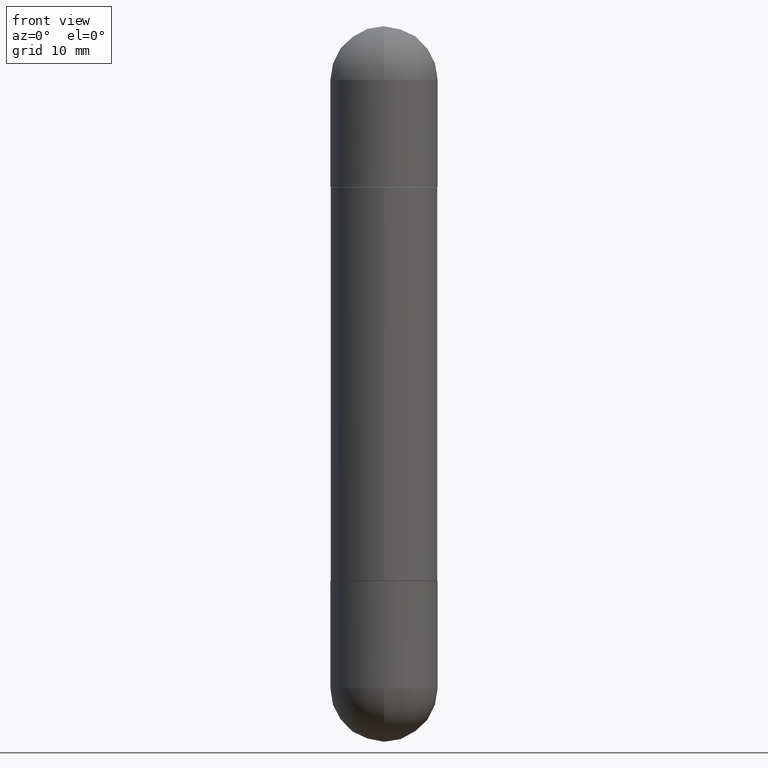
[diagram: clean part render]
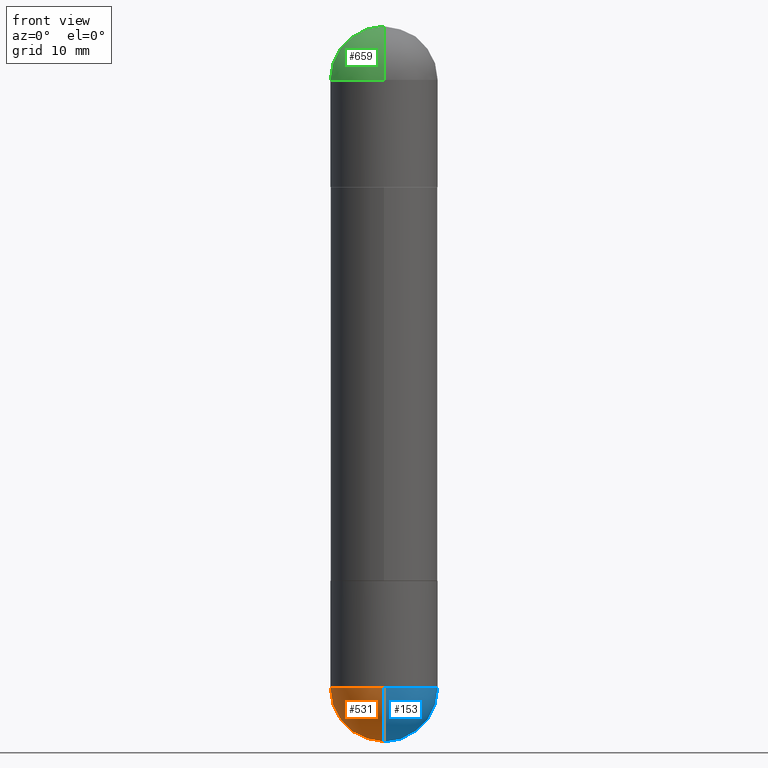
[diagram: same view with three faces highlighted in distinct colors, each labeled with its STEP entity id]
A machine part, front view with three faces highlighted in distinct colors.
Their STEP definitions:

[orange] entity #531 — the highlighted spherical surface has radius 4.7625 mm.
#18 = VERTEX_POINT ( 'NONE', #730 ) ;
#41 = CARTESIAN_POINT ( 'NONE',  ( 5.324026836389243254E-29, -8.548232964214825368E-15, -2.312500000000000000 ) ) ;
#45 = CIRCLE ( 'NONE', #618, 0.1875000000000000555 ) ;
#47 = DIRECTION ( 'NONE',  ( 6.982962677686265922E-15, 1.000000000000000000, 0.000000000000000000 ) ) ;
#68 = EDGE_LOOP ( 'NONE', ( #200, #360, #77, #252 ) ) ;
#77 = ORIENTED_EDGE ( 'NONE', *, *, #305, .F. ) ;
#85 = AXIS2_PLACEMENT_3D ( 'NONE', #41, #231, #112 ) ;
#88 = EDGE_CURVE ( 'NONE', #18, #381, #339, .T. ) ;
#112 = DIRECTION ( 'NONE',  ( -7.105427357600999492E-15, -1.000000000000000000, 0.000000000000000000 ) ) ;
#118 = CARTESIAN_POINT ( 'NONE',  ( 5.655146614303128380E-29, -8.074050596074775072E-15, -2.312500000000000000 ) ) ;
#169 = DIRECTION ( 'NONE',  ( 6.982962677686266711E-15, 1.000000000000000000, -2.913971193241875639E-15 ) ) ;
#184 = CIRCLE ( 'NONE', #652, 0.1875000000000003331 ) ;
#200 = ORIENTED_EDGE ( 'NONE', *, *, #787, .F. ) ;
#231 = DIRECTION ( 'NONE',  ( -1.000000000000000000, 7.105427357601001070E-15, -4.926315508542082329E-29 ) ) ;
#238 = CARTESIAN_POINT ( 'NONE',  ( 5.324026836389243254E-29, -8.548232964214825368E-15, -2.312500000000000000 ) ) ;
#241 = CIRCLE ( 'NONE', #272, 0.1875000000000000555 ) ;
#251 = DIRECTION ( 'NONE',  ( -2.445468806185136597E-29, 3.491481338843145583E-15, 1.000000000000000000 ) ) ;
#252 = ORIENTED_EDGE ( 'NONE', *, *, #358, .F. ) ;
#272 = AXIS2_PLACEMENT_3D ( 'NONE', #118, #450, #771 ) ;
#294 = VERTEX_POINT ( 'NONE', #576 ) ;
#305 = EDGE_CURVE ( 'NONE', #705, #381, #241, .T. ) ;
#339 = CIRCLE ( 'NONE', #85, 0.1875000000000003331 ) ;
#353 = CARTESIAN_POINT ( 'NONE',  ( 5.324026836389243254E-29, -8.548232964214825368E-15, -2.312500000000000000 ) ) ;
#358 = EDGE_CURVE ( 'NONE', #294, #705, #45, .T. ) ;
#360 = ORIENTED_EDGE ( 'NONE', *, *, #88, .T. ) ;
#377 = AXIS2_PLACEMENT_3D ( 'NONE', #353, #797, #169 ) ;
#381 = VERTEX_POINT ( 'NONE', #706 ) ;
#450 = DIRECTION ( 'NONE',  ( -2.445468806185136597E-29, 3.491481338843145583E-15, 1.000000000000000000 ) ) ;
#470 = SPHERICAL_SURFACE ( 'NONE', #377, 0.1875000000000003331 ) ;
#508 = DIRECTION ( 'NONE',  ( 1.000000000000000000, -6.982962677686270655E-15, 0.000000000000000000 ) ) ;
#531 = ADVANCED_FACE ( 'NONE', ( #784 ), #470, .T. ) ;
#568 = CARTESIAN_POINT ( 'NONE',  ( -0.1875000000000000555, -6.088003085826207710E-15, -2.312500000000000000 ) ) ;
#576 = CARTESIAN_POINT ( 'NONE',  ( 1.309305502066231017E-15, 0.1874999999999918954, -2.312500000000000444 ) ) ;
#618 = AXIS2_PLACEMENT_3D ( 'NONE', #640, #251, #508 ) ;
#620 = DIRECTION ( 'NONE',  ( 1.000000000000000000, -6.982962677686265922E-15, 4.883557194083112340E-29 ) ) ;
#640 = CARTESIAN_POINT ( 'NONE',  ( 5.655146614303128380E-29, -8.074050596074775072E-15, -2.312500000000000000 ) ) ;
#652 = AXIS2_PLACEMENT_3D ( 'NONE', #238, #620, #47 ) ;
#705 = VERTEX_POINT ( 'NONE', #568 ) ;
#706 = CARTESIAN_POINT ( 'NONE',  ( -1.332267629550134009E-15, -0.1875000000000084932, -2.312499999999999556 ) ) ;
#730 = CARTESIAN_POINT ( 'NONE',  ( 5.790569421510013204E-29, -9.191404651505909607E-15, -2.500000000000000000 ) ) ;
#771 = DIRECTION ( 'NONE',  ( 1.000000000000000000, -6.982962677686270655E-15, 0.000000000000000000 ) ) ;
#784 = FACE_OUTER_BOUND ( 'NONE', #68, .T. ) ;
#787 = EDGE_CURVE ( 'NONE', #18, #294, #184, .T. ) ;
#797 = DIRECTION ( 'NONE',  ( -1.000000000000000000, 6.982962677686266711E-15, -4.883557194083113462E-29 ) ) ;

[blue] entity #153 — the highlighted spherical surface has radius 4.7625 mm.
#18 = VERTEX_POINT ( 'NONE', #730 ) ;
#35 = DIRECTION ( 'NONE',  ( -1.000000000000000000, 6.982962677686266711E-15, -4.883557194083113462E-29 ) ) ;
#41 = CARTESIAN_POINT ( 'NONE',  ( 5.324026836389243254E-29, -8.548232964214825368E-15, -2.312500000000000000 ) ) ;
#47 = DIRECTION ( 'NONE',  ( 6.982962677686265922E-15, 1.000000000000000000, 0.000000000000000000 ) ) ;
#82 = CARTESIAN_POINT ( 'NONE',  ( 5.655146614303128380E-29, -8.074050596074775072E-15, -2.312500000000000000 ) ) ;
#85 = AXIS2_PLACEMENT_3D ( 'NONE', #41, #231, #112 ) ;
#88 = EDGE_CURVE ( 'NONE', #18, #381, #339, .T. ) ;
#112 = DIRECTION ( 'NONE',  ( -7.105427357600999492E-15, -1.000000000000000000, 0.000000000000000000 ) ) ;
#137 = ORIENTED_EDGE ( 'NONE', *, *, #88, .F. ) ;
#152 = AXIS2_PLACEMENT_3D ( 'NONE', #170, #35, #686 ) ;
#153 = ADVANCED_FACE ( 'NONE', ( #420 ), #223, .T. ) ;
#157 = CARTESIAN_POINT ( 'NONE',  ( 0.1875000000000000555, -8.729576217442571356E-15, -2.312500000000000000 ) ) ;
#170 = CARTESIAN_POINT ( 'NONE',  ( 5.324026836389243254E-29, -8.548232964214825368E-15, -2.312500000000000000 ) ) ;
#184 = CIRCLE ( 'NONE', #652, 0.1875000000000003331 ) ;
#197 = CIRCLE ( 'NONE', #728, 0.1875000000000000555 ) ;
#223 = SPHERICAL_SURFACE ( 'NONE', #152, 0.1875000000000003331 ) ;
#231 = DIRECTION ( 'NONE',  ( -1.000000000000000000, 7.105427357601001070E-15, -4.926315508542082329E-29 ) ) ;
#236 = VERTEX_POINT ( 'NONE', #157 ) ;
#238 = CARTESIAN_POINT ( 'NONE',  ( 5.324026836389243254E-29, -8.548232964214825368E-15, -2.312500000000000000 ) ) ;
#262 = EDGE_LOOP ( 'NONE', ( #137, #575, #328, #265 ) ) ;
#265 = ORIENTED_EDGE ( 'NONE', *, *, #491, .F. ) ;
#294 = VERTEX_POINT ( 'NONE', #576 ) ;
#328 = ORIENTED_EDGE ( 'NONE', *, *, #475, .F. ) ;
#339 = CIRCLE ( 'NONE', #85, 0.1875000000000003331 ) ;
#364 = AXIS2_PLACEMENT_3D ( 'NONE', #82, #668, #776 ) ;
#381 = VERTEX_POINT ( 'NONE', #706 ) ;
#420 = FACE_OUTER_BOUND ( 'NONE', #262, .T. ) ;
#468 = CIRCLE ( 'NONE', #364, 0.1875000000000000555 ) ;
#475 = EDGE_CURVE ( 'NONE', #236, #294, #197, .T. ) ;
#491 = EDGE_CURVE ( 'NONE', #381, #236, #468, .T. ) ;
#575 = ORIENTED_EDGE ( 'NONE', *, *, #787, .T. ) ;
#576 = CARTESIAN_POINT ( 'NONE',  ( 1.309305502066231017E-15, 0.1874999999999918954, -2.312500000000000444 ) ) ;
#587 = CARTESIAN_POINT ( 'NONE',  ( 5.655146614303128380E-29, -8.074050596074775072E-15, -2.312500000000000000 ) ) ;
#620 = DIRECTION ( 'NONE',  ( 1.000000000000000000, -6.982962677686265922E-15, 4.883557194083112340E-29 ) ) ;
#652 = AXIS2_PLACEMENT_3D ( 'NONE', #238, #620, #47 ) ;
#668 = DIRECTION ( 'NONE',  ( -2.445468806185136597E-29, 3.491481338843145583E-15, 1.000000000000000000 ) ) ;
#686 = DIRECTION ( 'NONE',  ( 6.982962677686266711E-15, 1.000000000000000000, -2.913971193241875639E-15 ) ) ;
#706 = CARTESIAN_POINT ( 'NONE',  ( -1.332267629550134009E-15, -0.1875000000000084932, -2.312499999999999556 ) ) ;
#722 = DIRECTION ( 'NONE',  ( -2.445468806185136597E-29, 3.491481338843145583E-15, 1.000000000000000000 ) ) ;
#727 = DIRECTION ( 'NONE',  ( 1.000000000000000000, -6.982962677686270655E-15, 0.000000000000000000 ) ) ;
#728 = AXIS2_PLACEMENT_3D ( 'NONE', #587, #722, #727 ) ;
#730 = CARTESIAN_POINT ( 'NONE',  ( 5.790569421510013204E-29, -9.191404651505909607E-15, -2.500000000000000000 ) ) ;
#776 = DIRECTION ( 'NONE',  ( 1.000000000000000000, -6.982962677686270655E-15, 0.000000000000000000 ) ) ;
#787 = EDGE_CURVE ( 'NONE', #18, #294, #184, .T. ) ;

[green] entity #659 — the highlighted spherical surface has radius 4.7625 mm.
#4 = VERTEX_POINT ( 'NONE', #723 ) ;
#33 = ORIENTED_EDGE ( 'NONE', *, *, #395, .T. ) ;
#42 = CARTESIAN_POINT ( 'NONE',  ( -1.286343374582108525E-15, -0.1875000000000084932, -0.1875000000000013045 ) ) ;
#72 = CIRCLE ( 'NONE', #374, 0.1875000000000000555 ) ;
#73 = AXIS2_PLACEMENT_3D ( 'NONE', #204, #81, #268 ) ;
#81 = DIRECTION ( 'NONE',  ( -1.000000000000000000, 6.982962677686265922E-15, 4.883557194083112340E-29 ) ) ;
#106 = DIRECTION ( 'NONE',  ( 1.000000000000000000, -6.982962677686270655E-15, 0.000000000000000000 ) ) ;
#154 = AXIS2_PLACEMENT_3D ( 'NONE', #806, #193, #391 ) ;
#162 = CARTESIAN_POINT ( 'NONE',  ( 5.655146614303128380E-29, -8.074050596074775072E-15, -0.1875000000000006661 ) ) ;
#189 = DIRECTION ( 'NONE',  ( 6.982962677686266711E-15, 1.000000000000000000, 3.460340791974727494E-15 ) ) ;
#193 = DIRECTION ( 'NONE',  ( 1.000000000000000000, -6.860497997771530774E-15, -4.840798879624142912E-29 ) ) ;
#196 = ORIENTED_EDGE ( 'NONE', *, *, #774, .F. ) ;
#202 = EDGE_CURVE ( 'NONE', #345, #4, #72, .T. ) ;
#204 = CARTESIAN_POINT ( 'NONE',  ( 5.324026836389243254E-29, -8.548232964214825368E-15, -0.1875000000000006661 ) ) ;
#209 = EDGE_CURVE ( 'NONE', #4, #645, #741, .T. ) ;
#268 = DIRECTION ( 'NONE',  ( -6.982962677686265922E-15, -1.000000000000000000, 0.000000000000000000 ) ) ;
#292 = FACE_OUTER_BOUND ( 'NONE', #303, .T. ) ;
#303 = EDGE_LOOP ( 'NONE', ( #196, #33, #697, #503 ) ) ;
#307 = CIRCLE ( 'NONE', #73, 0.1875000000000003331 ) ;
#345 = VERTEX_POINT ( 'NONE', #751 ) ;
#352 = AXIS2_PLACEMENT_3D ( 'NONE', #627, #432, #189 ) ;
#363 = AXIS2_PLACEMENT_3D ( 'NONE', #162, #793, #106 ) ;
#365 = DIRECTION ( 'NONE',  ( 1.000000000000000000, -6.982962677686270655E-15, 0.000000000000000000 ) ) ;
#374 = AXIS2_PLACEMENT_3D ( 'NONE', #736, #411, #365 ) ;
#391 = DIRECTION ( 'NONE',  ( 6.860497997771530774E-15, 1.000000000000000000, 0.000000000000000000 ) ) ;
#395 = EDGE_CURVE ( 'NONE', #639, #345, #307, .T. ) ;
#411 = DIRECTION ( 'NONE',  ( 2.445468806185136597E-29, -3.491481338843145583E-15, 1.000000000000000000 ) ) ;
#432 = DIRECTION ( 'NONE',  ( 1.000000000000000000, -6.982962677686266711E-15, -4.883557194083113462E-29 ) ) ;
#473 = SPHERICAL_SURFACE ( 'NONE', #352, 0.1875000000000003331 ) ;
#503 = ORIENTED_EDGE ( 'NONE', *, *, #209, .T. ) ;
#627 = CARTESIAN_POINT ( 'NONE',  ( 5.324026836389243254E-29, -8.548232964214825368E-15, -0.1875000000000006661 ) ) ;
#639 = VERTEX_POINT ( 'NONE', #792 ) ;
#645 = VERTEX_POINT ( 'NONE', #42 ) ;
#659 = ADVANCED_FACE ( 'NONE', ( #292 ), #473, .T. ) ;
#697 = ORIENTED_EDGE ( 'NONE', *, *, #202, .T. ) ;
#723 = CARTESIAN_POINT ( 'NONE',  ( -0.1875000000000000555, -6.133927340794233391E-15, -0.1875000000000006661 ) ) ;
#736 = CARTESIAN_POINT ( 'NONE',  ( 5.655146614303128380E-29, -8.074050596074775072E-15, -0.1875000000000006661 ) ) ;
#741 = CIRCLE ( 'NONE', #363, 0.1875000000000000555 ) ;
#751 = CARTESIAN_POINT ( 'NONE',  ( 1.309305502066231017E-15, 0.1874999999999918954, -0.1875000000000000278 ) ) ;
#774 = EDGE_CURVE ( 'NONE', #639, #645, #800, .T. ) ;
#792 = CARTESIAN_POINT ( 'NONE',  ( 5.790569421510013204E-29, -9.191404651505909607E-15, -3.414809992080329023E-16 ) ) ;
#793 = DIRECTION ( 'NONE',  ( 2.445468806185136597E-29, -3.491481338843145583E-15, 1.000000000000000000 ) ) ;
#800 = CIRCLE ( 'NONE', #154, 0.1875000000000003331 ) ;
#806 = CARTESIAN_POINT ( 'NONE',  ( 5.324026836389243254E-29, -8.548232964214825368E-15, -0.1875000000000006661 ) ) ;